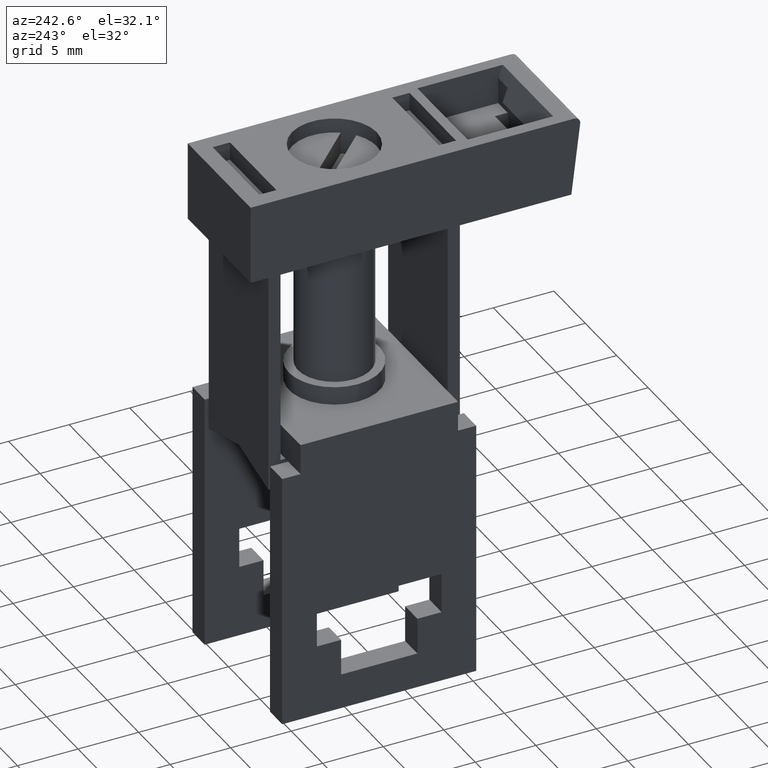
[diagram: clean part render]
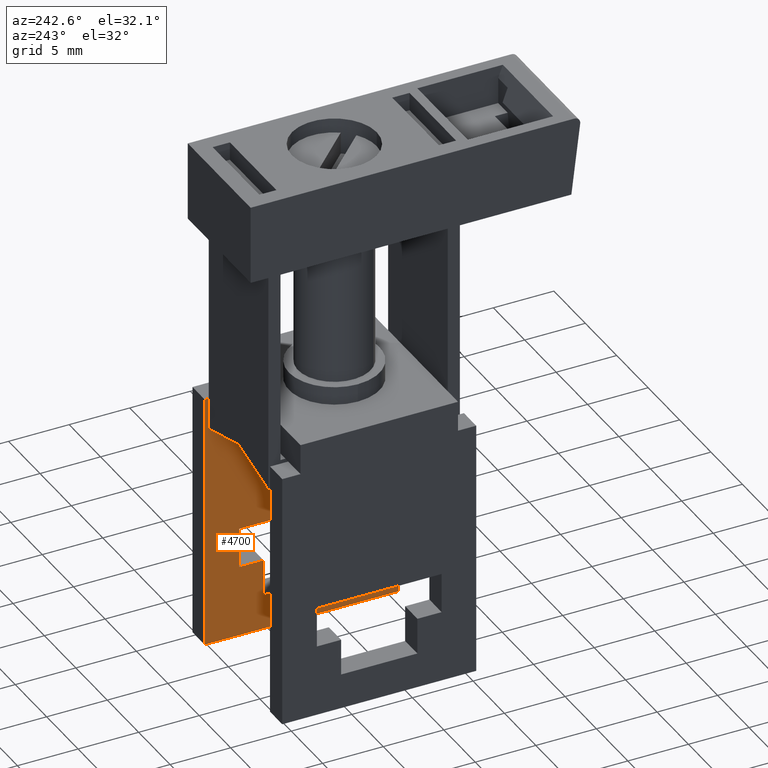
[diagram: same view with one face highlighted and labeled with its STEP entity id]
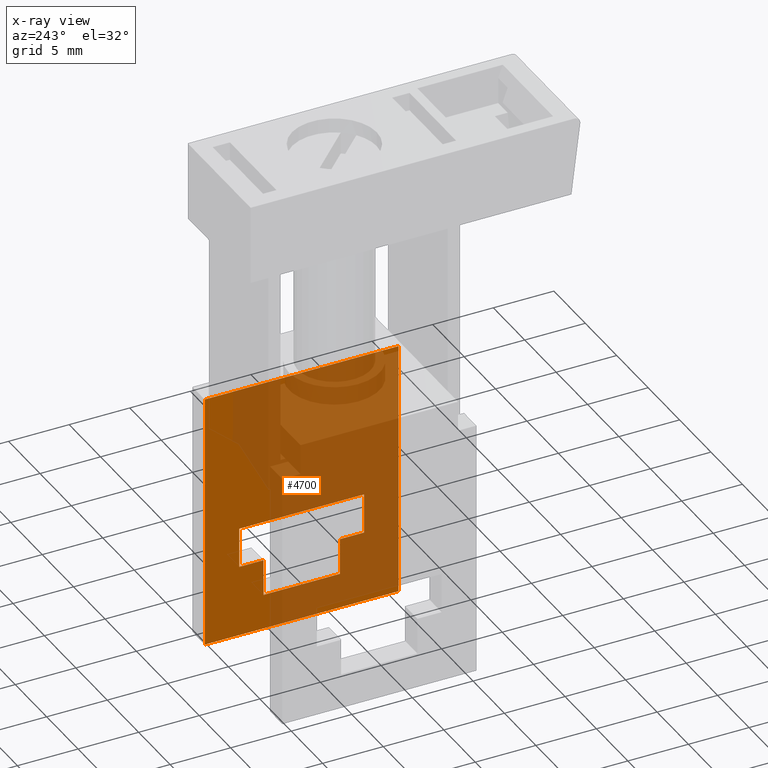
[diagram: x-ray of the same camera — body ghosted, the highlighted face saturated]
A machine part, auxiliary view. The second image highlights one B-rep face of the part: STEP entity #4700.
The next image is the same camera in x-ray: the body ghosted, the highlighted face saturated — about 69% of this face is hidden behind the body in this view.
In plain terms, the highlighted planar face has unit normal (-1, 0, 0).
Its self-contained STEP definition (entity closure, byte-faithful):
#3000=CARTESIAN_POINT('',(-21.5056108469938,-19.2999999999999,
4.84999999999998));
#3010=VERTEX_POINT('',#3000);
#3040=CARTESIAN_POINT('',(-21.5056108469939,-19.2999999999999,
7.99999999999998));
#3050=DIRECTION('',(-7.24514098033355E-15,-5.06719872088059E-29,1.));
#3060=VECTOR('',#3050,1.);
#3070=LINE('',#3040,#3060);
#3080=CARTESIAN_POINT('',(-21.5056108469938,-19.2999999999999,2.85));
#3090=VERTEX_POINT('',#3080);
#3100=EDGE_CURVE('',#3090,#3010,#3070,.T.);
#3340=CARTESIAN_POINT('',(-21.5056108469939,-19.2999999999999,
7.99999999999998));
#3350=DIRECTION('',(-7.24514098033355E-15,-5.06719872088059E-29,1.));
#3360=VECTOR('',#3350,1.);
#3370=LINE('',#3340,#3360);
#3380=CARTESIAN_POINT('',(-21.5056108469939,-19.2999999999999,11.15));
#3390=VERTEX_POINT('',#3380);
#3400=CARTESIAN_POINT('',(-21.5056108469939,-19.2999999999999,13.15));
#3410=VERTEX_POINT('',#3400);
#3420=EDGE_CURVE('',#3390,#3410,#3370,.T.);
#3670=CARTESIAN_POINT('',(-21.5056108469938,-11.9499999999999,
7.99999999999998));
#3680=DIRECTION('',(-1.,9.67358135062294E-15,-7.24514098033355E-15));
#3690=DIRECTION('',(9.67358135062294E-15,1.,1.20961013596208E-28));
#3700=AXIS2_PLACEMENT_3D('',#3670,#3680,#3690);
#3710=PLANE('',#3700);
#3720=CARTESIAN_POINT('',(-21.5056108469936,6.08356390264414E-14,2.85));
#3730=DIRECTION('',(-9.67358135062294E-15,-1.,-1.20961013596208E-28));
#3740=VECTOR('',#3730,1.);
#3750=LINE('',#3720,#3740);
#3760=CARTESIAN_POINT('',(-21.5056108469938,-15.9999999999999,2.85));
#3770=VERTEX_POINT('',#3760);
#3780=EDGE_CURVE('',#3770,#3090,#3750,.T.);
#3790=ORIENTED_EDGE('',*,*,#3780,.F.);
#3800=ORIENTED_EDGE('',*,*,#3100,.F.);
#3810=CARTESIAN_POINT('',(-21.5056108469937,6.08356390264413E-14,
4.84999999999992));
#3820=DIRECTION('',(-9.67358135062296E-15,-1.,2.84217094304028E-15));
#3830=VECTOR('',#3820,1.);
#3840=LINE('',#3810,#3830);
#3850=CARTESIAN_POINT('',(-21.5056108469939,-22.2999999999999,
4.84999999999999));
#3860=VERTEX_POINT('',#3850);
#3870=EDGE_CURVE('',#3010,#3860,#3840,.T.);
#3880=ORIENTED_EDGE('',*,*,#3870,.F.);
#3890=CARTESIAN_POINT('',(-21.5056108469939,-22.2999999999999,
7.99999999999998));
#3900=DIRECTION('',(-7.24514098033355E-15,-5.06719872088059E-29,1.));
#3910=VECTOR('',#3900,1.);
#3920=LINE('',#3890,#3910);
#3930=CARTESIAN_POINT('',(-21.5056108469939,-22.2999999999999,11.15));
#3940=VERTEX_POINT('',#3930);
#3950=EDGE_CURVE('',#3860,#3940,#3920,.T.);
#3960=ORIENTED_EDGE('',*,*,#3950,.F.);
#3970=CARTESIAN_POINT('',(-21.5056108469937,6.0835639026441E-14,11.15));
#3980=DIRECTION('',(9.67358135062294E-15,1.,1.20961013596208E-28));
#3990=VECTOR('',#3980,1.);
#4000=LINE('',#3970,#3990);
#4010=EDGE_CURVE('',#3940,#3390,#4000,.T.);
#4020=ORIENTED_EDGE('',*,*,#4010,.F.);
#4030=ORIENTED_EDGE('',*,*,#3420,.F.);
#4040=CARTESIAN_POINT('',(-21.5056108469937,6.08356390264409E-14,13.15))
;
#4050=DIRECTION('',(9.67358135062294E-15,1.,1.20961013596208E-28));
#4060=VECTOR('',#4050,1.);
#4070=LINE('',#4040,#4060);
#4080=CARTESIAN_POINT('',(-21.5056108469939,-15.9999999999999,13.15));
#4090=VERTEX_POINT('',#4080);
#4100=EDGE_CURVE('',#3410,#4090,#4070,.T.);
#4110=ORIENTED_EDGE('',*,*,#4100,.F.);
#4120=CARTESIAN_POINT('',(-21.5056108469938,-15.9999999999999,
7.99999999999998));
#4130=DIRECTION('',(7.24514098033355E-15,5.06719872088059E-29,-1.));
#4140=VECTOR('',#4130,1.);
#4150=LINE('',#4120,#4140);
#4160=EDGE_CURVE('',#4090,#3770,#4150,.T.);
#4170=ORIENTED_EDGE('',*,*,#4160,.F.);
#4180=EDGE_LOOP('',(#4170,#4110,#4030,#4020,#3960,#3880,#3800,#3790));
#4190=FACE_BOUND('',#4180,.T.);
#4200=CARTESIAN_POINT('',(-21.5056108469939,-25.1999999999999,
7.99999999999998));
#4210=DIRECTION('',(7.24514098033355E-15,5.06719872088059E-29,-1.));
#4220=VECTOR('',#4210,1.);
#4230=LINE('',#4200,#4220);
#4240=CARTESIAN_POINT('',(-21.505610846994,-25.1999999999999,16.));
#4250=VERTEX_POINT('',#4240);
#4260=CARTESIAN_POINT('',(-21.5056108469939,-25.1999999999999,
-2.1316282072803E-14));
#4270=VERTEX_POINT('',#4260);
#4280=EDGE_CURVE('',#4250,#4270,#4230,.T.);
#4290=ORIENTED_EDGE('',*,*,#4280,.F.);
#4300=CARTESIAN_POINT('',(-21.5056108469936,6.08356390264416E-14,
-2.1316282072803E-14));
#4310=DIRECTION('',(9.67358135062294E-15,1.,1.20961013596208E-28));
#4320=VECTOR('',#4310,1.);
#4330=LINE('',#4300,#4320);
#4340=CARTESIAN_POINT('',(-21.5056108469937,-3.9999999999999,
-2.1316282072803E-14));
#4350=VERTEX_POINT('',#4340);
#4360=EDGE_CURVE('',#4270,#4350,#4330,.T.);
#4370=ORIENTED_EDGE('',*,*,#4360,.F.);
#4380=CARTESIAN_POINT('',(-21.5056108469937,-3.9999999999999,
7.99999999999998));
#4390=DIRECTION('',(7.24514098033355E-15,5.06719872088059E-29,-1.));
#4400=VECTOR('',#4390,1.);
#4410=LINE('',#4380,#4400);
#4420=CARTESIAN_POINT('',(-21.5056108469937,-3.9999999999999,
1.49999999999998));
#4430=VERTEX_POINT('',#4420);
#4440=EDGE_CURVE('',#4430,#4350,#4410,.T.);
#4450=ORIENTED_EDGE('',*,*,#4440,.T.);
#4460=CARTESIAN_POINT('',(-21.5056108469937,-3.99999999999994,
7.99999999999998));
#4470=DIRECTION('',(7.24514098033355E-15,5.06719872088059E-29,-1.));
#4480=VECTOR('',#4470,1.);
#4490=LINE('',#4460,#4480);
#4500=CARTESIAN_POINT('',(-21.5056108469938,-3.9999999999999,14.5));
#4510=VERTEX_POINT('',#4500);
#4520=EDGE_CURVE('',#4510,#4430,#4490,.T.);
#4530=ORIENTED_EDGE('',*,*,#4520,.T.);
#4540=CARTESIAN_POINT('',(-21.5056108469937,-3.9999999999999,
7.99999999999998));
#4550=DIRECTION('',(7.24514098033355E-15,5.06719872088059E-29,-1.));
#4560=VECTOR('',#4550,1.);
#4570=LINE('',#4540,#4560);
#4580=CARTESIAN_POINT('',(-21.5056108469938,-3.9999999999999,16.));
#4590=VERTEX_POINT('',#4580);
#4600=EDGE_CURVE('',#4590,#4510,#4570,.T.);
#4610=ORIENTED_EDGE('',*,*,#4600,.T.);
#4620=CARTESIAN_POINT('',(-21.5056108469937,6.08356390264408E-14,16.));
#4630=DIRECTION('',(-9.67358135062294E-15,-1.,-1.20961013596208E-28));
#4640=VECTOR('',#4630,1.);
#4650=LINE('',#4620,#4640);
#4660=EDGE_CURVE('',#4590,#4250,#4650,.T.);
#4670=ORIENTED_EDGE('',*,*,#4660,.F.);
#4680=EDGE_LOOP('',(#4670,#4610,#4530,#4450,#4370,#4290));
#4690=FACE_OUTER_BOUND('',#4680,.T.);
#4700=ADVANCED_FACE('',(#4190,#4690),#3710,.T.);